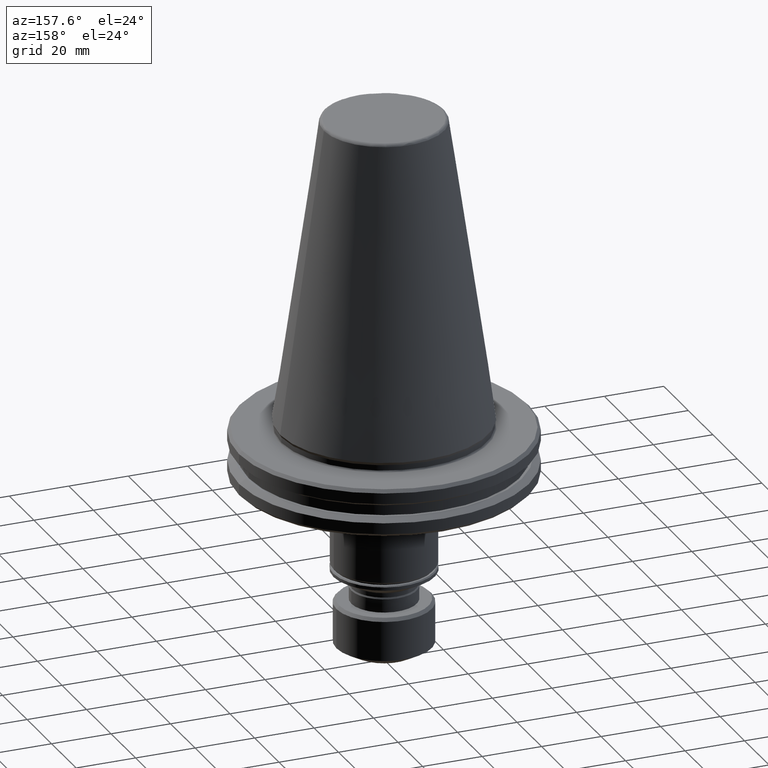
[diagram: clean part render]
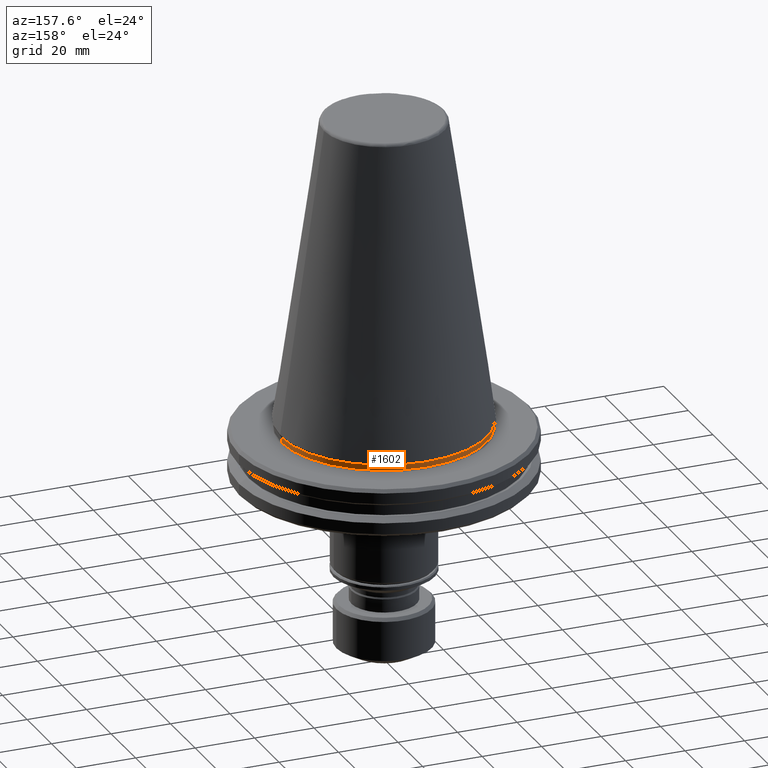
[diagram: same view with one face highlighted and labeled with its STEP entity id]
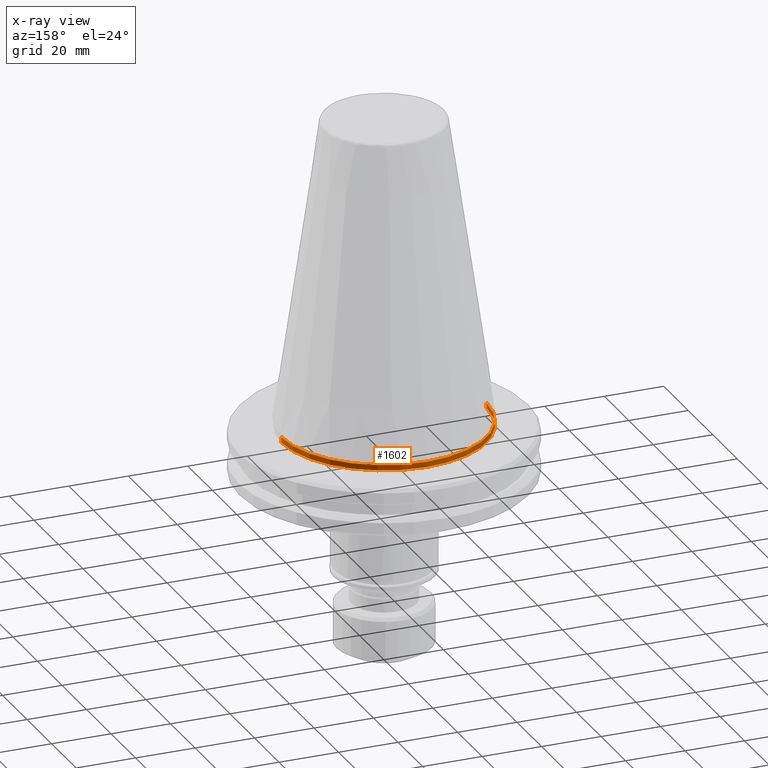
[diagram: x-ray of the same camera — body ghosted, the highlighted face saturated]
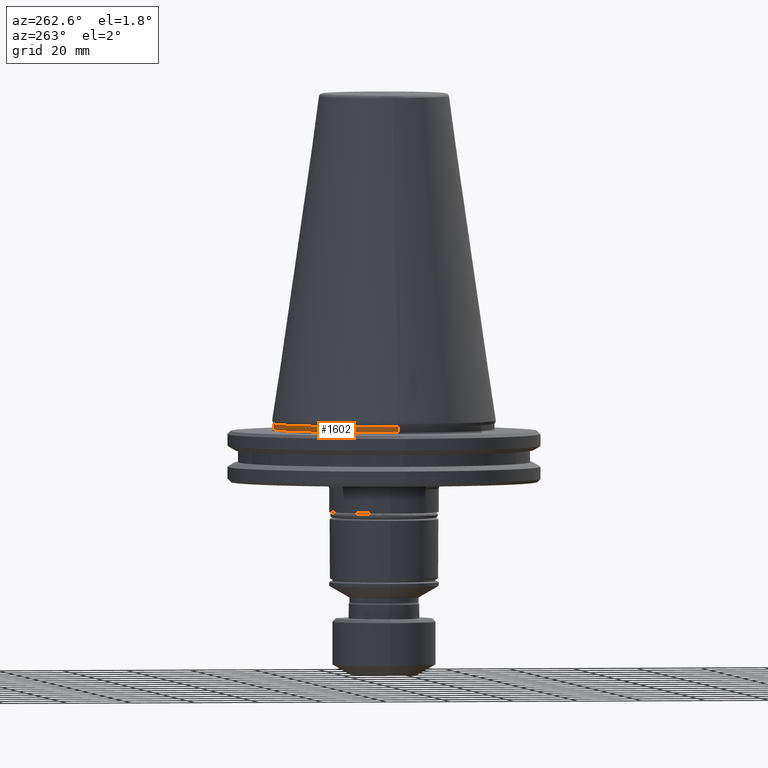
[diagram: same view with one face highlighted and labeled with its STEP entity id]
A machine part, auxiliary view. The second image highlights one B-rep face of the part: STEP entity #1602.
The next image is the same camera in x-ray: the body ghosted, the highlighted face saturated — about 1% of this face is hidden behind the body in this view.
A second angle (auxiliary view) of the same face is appended — the face is thin or edge-on in the first view.
In plain terms, the highlighted cylindrical surface (partial cylindrical patch) has radius 34.5 mm, axis along (0, 0, 1).
Its self-contained STEP definition (entity closure, byte-faithful):
#28 = VERTEX_POINT ( 'NONE', #1760 ) ;
#95 = CARTESIAN_POINT ( 'NONE',  ( 0.0000000000000000000, 0.0000000000000000000, 113.5216080541959500 ) ) ;
#108 = DIRECTION ( 'NONE',  ( 0.0000000000000000000, 0.0000000000000000000, 1.000000000000000000 ) ) ;
#114 = VERTEX_POINT ( 'NONE', #1578 ) ;
#125 = EDGE_CURVE ( 'NONE', #114, #28, #1421, .T. ) ;
#197 = VECTOR ( 'NONE', #843, 1000.000000000000000 ) ;
#273 = LINE ( 'NONE', #651, #903 ) ;
#331 = VERTEX_POINT ( 'NONE', #1548 ) ;
#363 = DIRECTION ( 'NONE',  ( 1.000000000000000000, 0.0000000000000000000, 0.0000000000000000000 ) ) ;
#524 = ORIENTED_EDGE ( 'NONE', *, *, #125, .F. ) ;
#540 = DIRECTION ( 'NONE',  ( 1.000000000000000000, 0.0000000000000000000, 0.0000000000000000000 ) ) ;
#550 = DIRECTION ( 'NONE',  ( 0.0000000000000000000, 0.0000000000000000000, 1.000000000000000000 ) ) ;
#553 = CARTESIAN_POINT ( 'NONE',  ( 0.0000000000000000000, 0.0000000000000000000, -2.699999999999994000 ) ) ;
#599 = EDGE_CURVE ( 'NONE', #714, #114, #774, .T. ) ;
#651 = CARTESIAN_POINT ( 'NONE',  ( -34.50000000000000000, 4.225031457058368900E-015, 113.5216080541959500 ) ) ;
#660 = DIRECTION ( 'NONE',  ( 0.0000000000000000000, 0.0000000000000000000, 1.000000000000000000 ) ) ;
#714 = VERTEX_POINT ( 'NONE', #1641 ) ;
#756 = CARTESIAN_POINT ( 'NONE',  ( 34.50000000000000000, 0.0000000000000000000, 113.5216080541959500 ) ) ;
#774 = LINE ( 'NONE', #756, #197 ) ;
#843 = DIRECTION ( 'NONE',  ( 0.0000000000000000000, 0.0000000000000000000, 1.000000000000000000 ) ) ;
#849 = ORIENTED_EDGE ( 'NONE', *, *, #1206, .T. ) ;
#903 = VECTOR ( 'NONE', #660, 1000.000000000000000 ) ;
#991 = FACE_OUTER_BOUND ( 'NONE', #994, .T. ) ;
#994 = EDGE_LOOP ( 'NONE', ( #849, #1551, #524, #1308 ) ) ;
#1115 = DIRECTION ( 'NONE',  ( 1.000000000000000000, 0.0000000000000000000, -1.477029046574455400E-016 ) ) ;
#1206 = EDGE_CURVE ( 'NONE', #714, #331, #1965, .T. ) ;
#1308 = ORIENTED_EDGE ( 'NONE', *, *, #599, .F. ) ;
#1364 = CYLINDRICAL_SURFACE ( 'NONE', #2441, 34.50000000000000000 ) ;
#1421 = CIRCLE ( 'NONE', #1441, 34.50000000000000000 ) ;
#1441 = AXIS2_PLACEMENT_3D ( 'NONE', #2116, #2075, #1115 ) ;
#1548 = CARTESIAN_POINT ( 'NONE',  ( -34.50000000000000000, 4.225031457058368900E-015, -2.699999999999994000 ) ) ;
#1551 = ORIENTED_EDGE ( 'NONE', *, *, #1961, .T. ) ;
#1578 = CARTESIAN_POINT ( 'NONE',  ( 34.50000000000000000, 0.0000000000000000000, -0.9114154412165532700 ) ) ;
#1602 = ADVANCED_FACE ( 'NONE', ( #991 ), #1364, .T. ) ;
#1641 = CARTESIAN_POINT ( 'NONE',  ( 34.50000000000000000, 0.0000000000000000000, -2.699999999999994000 ) ) ;
#1760 = CARTESIAN_POINT ( 'NONE',  ( -34.50000000000000000, 4.251055201540250300E-015, -0.9114154412165481600 ) ) ;
#1920 = AXIS2_PLACEMENT_3D ( 'NONE', #553, #550, #540 ) ;
#1961 = EDGE_CURVE ( 'NONE', #331, #28, #273, .T. ) ;
#1965 = CIRCLE ( 'NONE', #1920, 34.50000000000000000 ) ;
#2075 = DIRECTION ( 'NONE',  ( 0.0000000000000000000, 0.0000000000000000000, 1.000000000000000000 ) ) ;
#2116 = CARTESIAN_POINT ( 'NONE',  ( 0.0000000000000000000, 0.0000000000000000000, -0.9114154412165481600 ) ) ;
#2441 = AXIS2_PLACEMENT_3D ( 'NONE', #95, #108, #363 ) ;